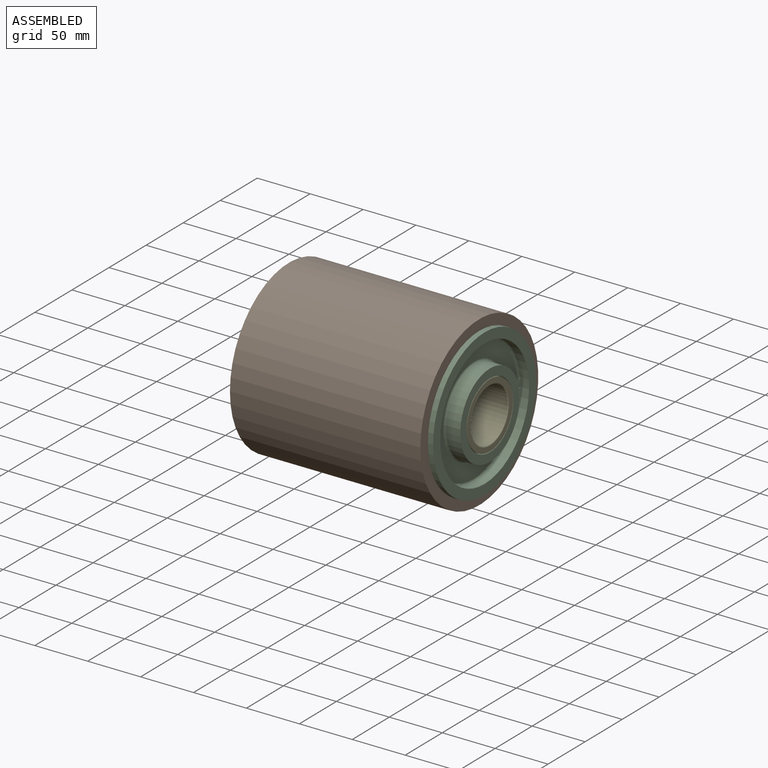
[diagram: assembled view]
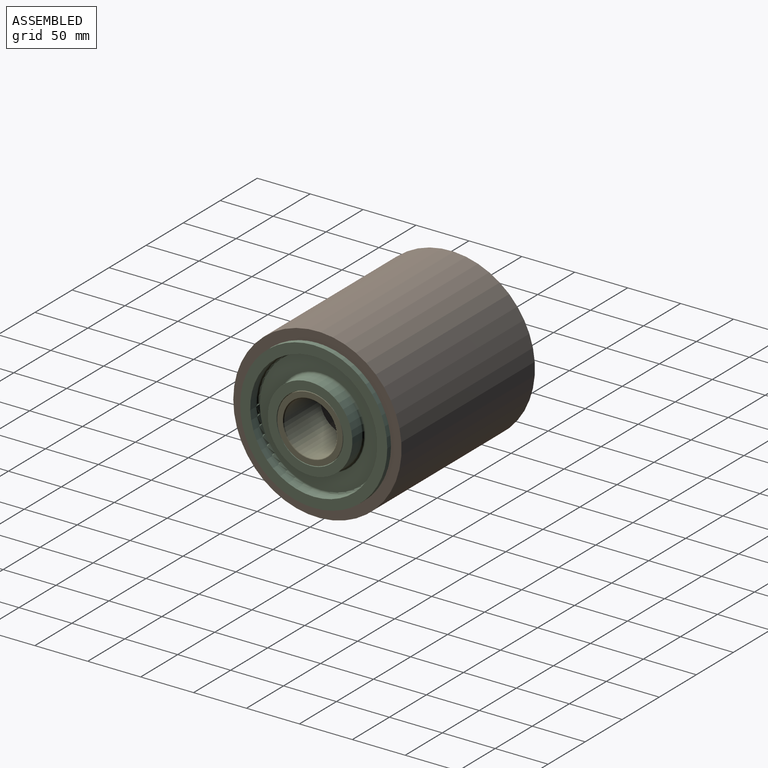
[diagram: assembled view, second angle]
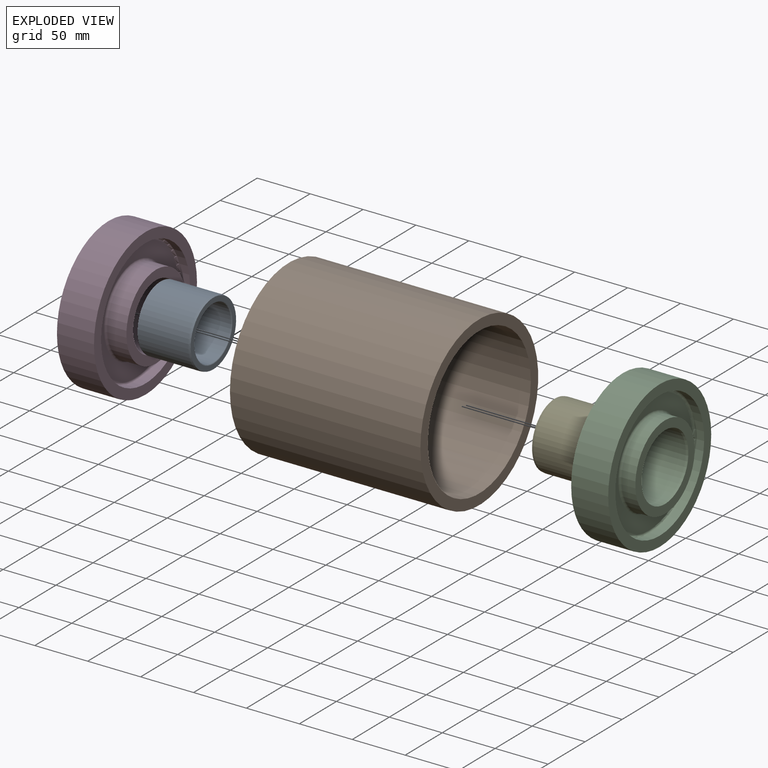
[diagram: exploded view]
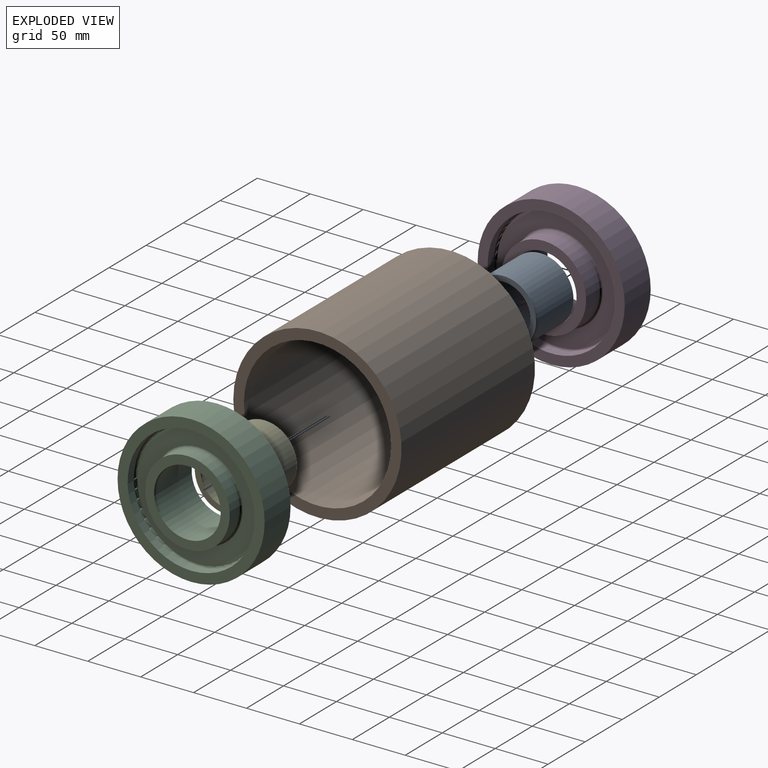
[diagram: exploded view, second angle]
ASSEMBLY  parts=5 mates=4
PART A: 7 faces, bbox 50x62x62 mm
  f0: cylinder r=25mm len=50mm, axis (-1,0,0), area 7539.8mm2, adj f4,f5
  f1: plane 62x62mm, normal (1,0,0), area 895.4mm2, adj f2,f4
  f2: cylinder r=31mm len=62mm, axis (-1,0,0), area 9349.4mm2, adj f1,f6
  f3: plane 61.29x61.29mm, normal (-1,0,0), area 827.1mm2, adj f5,f6
  f4: torus R=26mm, axis (-1,0,0), area 250.3mm2, adj f0,f1
  f5: torus R=26mm, axis (-1,0,0), area 250.3mm2, adj f0,f3
  f6: cone r=30.65mm half-angle=10deg, axis (1,0,0), area 393.3mm2, adj f2,f3
PART B: 4 faces, bbox 159x180x159 mm
  f0: cylinder r=69.5mm len=180mm, axis (0,-1,0), area 78602.6mm2, adj f2,f3
  f1: cylinder r=79.5mm len=180mm, axis (0,-1,0), area 89912.4mm2, adj f2,f3
  f2: plane 159x159mm, normal (0,1,0), area 4681mm2, adj f0,f1
  f3: plane 159x159mm, normal (0,-1,0), area 4681mm2, adj f0,f1
PART C: 17 faces, bbox 50x139x139 mm
  f0: cylinder r=40mm len=80mm, axis (-1,0,0), area 4523.9mm2, adj f1,f12
  f1: plane 80x80mm, normal (-1,0,0), area 2007.5mm2, adj f0,f2
  f2: cylinder r=31mm len=62mm, axis (-1,0,0), area 9349.4mm2, adj f1,f16
  f3: plane 80x80mm, normal (1,0,0), area 1902.2mm2, adj f4,f16
  f4: cylinder r=40mm len=80mm, axis (-1,0,0), area 3267.3mm2, adj f3,f15
  f5: cylinder r=60mm len=120mm, axis (1,0,0), area 3015.9mm2, adj f11,f14
  f6: plane 116x116mm, normal (1,0,0), area 5026.5mm2, adj f14,f15
  f7: plane 116x116mm, normal (-1,0,0), area 5026.5mm2, adj f12,f13
  f8: cylinder r=60mm len=120mm, axis (1,0,0), area 3015.9mm2, adj f9,f13
  f9: plane 139x139mm, normal (-1,0,0), area 3864.9mm2, adj f8,f10
  f10: cylinder r=69.5mm len=139mm, axis (-1,0,0), area 15283.8mm2, adj f9,f11
  f11: plane 139x139mm, normal (1,0,0), area 3864.9mm2, adj f5,f10
  f12: torus R=42mm, axis (1,0,0), area 803.9mm2, adj f0,f7
  f13: torus R=58mm, axis (1,0,0), area 1170mm2, adj f7,f8
  f14: torus R=58mm, axis (1,0,0), area 1170mm2, adj f5,f6
  f15: torus R=42mm, axis (1,0,0), area 803.9mm2, adj f4,f6
  f16: cone r=31.54mm half-angle=15deg, axis (1,0,0), area 406.8mm2, adj f2,f3
PART D: same geometry as C
PART E: same geometry as A
PLACE A rot(axis=(0,1,0),180deg) t=(-100,0,0)mm
PLACE B rot(axis=(-0.58,0.58,0.58),120deg) t=(90,0,0)mm
PLACE C t=(75,0,0)mm
PLACE D rot(axis=(0,1,0),180deg) t=(-75,0,0)mm
PLACE E t=(100,0,0)mm
MATE fastened B.f1 <-> D.f0  axis (-1,0,0) through (-90,0,0)mm
MATE fastened E.f0 <-> C.f0  axis (1,0,0) through (100,0,0)mm
MATE fastened B.f1 <-> C.f0  axis (1,0,0) through (90,0,0)mm
MATE fastened A.f0 <-> D.f0  axis (-1,0,0) through (-100,0,0)mm
